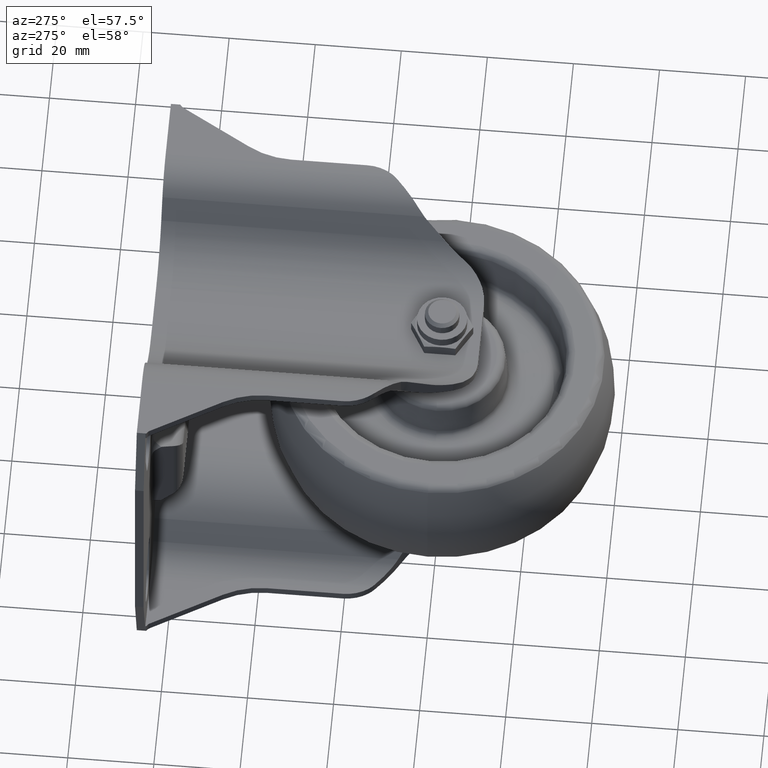
[diagram: clean part render]
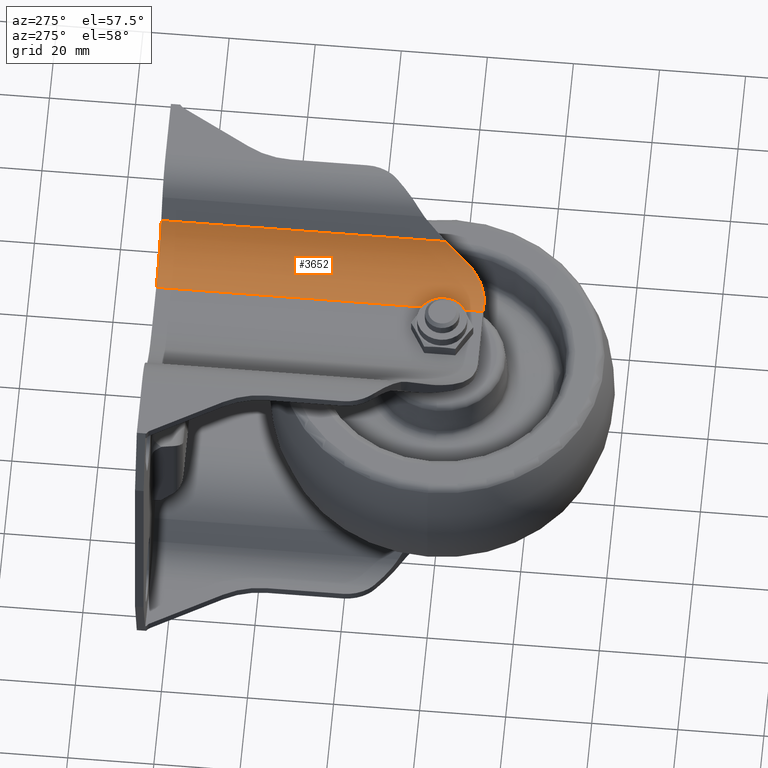
[diagram: same view with one face highlighted and labeled with its STEP entity id]
A machine part, auxiliary view. The second image highlights one B-rep face of the part: STEP entity #3652.
In plain terms, the highlighted cylindrical surface (partial cylindrical patch) has radius 15.5 mm, axis along (0, 1, 0).
Its self-contained STEP definition (entity closure, byte-faithful):
#52=ELLIPSE('',#4044,31.,15.5);
#89=B_SPLINE_CURVE_WITH_KNOTS('',3,(#6049,#6050,#6051,#6052,#6053,#6054,
#6055,#6056),.UNSPECIFIED.,.F.,.F.,(4,2,2,4),(-4.77685521076749,-4.36810699295151,
-3.95935877513553,-3.68877552892377),.UNSPECIFIED.);
#299=LINE('',#6036,#559);
#301=LINE('',#6045,#561);
#559=VECTOR('',#4647,1000.);
#561=VECTOR('',#4655,1000.);
#790=CYLINDRICAL_SURFACE('',#4043,15.5);
#914=FACE_OUTER_BOUND('',#1142,.T.);
#1142=EDGE_LOOP('',(#2720,#2721,#2722,#2723,#2724,#2725));
#1365=CIRCLE('',#4045,15.5);
#1366=CIRCLE('',#4046,15.5);
#1654=VERTEX_POINT('',#6033);
#1655=VERTEX_POINT('',#6035);
#1657=VERTEX_POINT('',#6041);
#1658=VERTEX_POINT('',#6042);
#1659=VERTEX_POINT('',#6044);
#1660=VERTEX_POINT('',#6047);
#2053=EDGE_CURVE('',#1654,#1655,#299,.T.);
#2056=EDGE_CURVE('',#1657,#1658,#52,.F.);
#2057=EDGE_CURVE('',#1657,#1659,#301,.T.);
#2058=EDGE_CURVE('',#1659,#1655,#1365,.T.);
#2059=EDGE_CURVE('',#1660,#1654,#1366,.F.);
#2060=EDGE_CURVE('',#1660,#1658,#89,.T.);
#2720=ORIENTED_EDGE('',*,*,#2056,.F.);
#2721=ORIENTED_EDGE('',*,*,#2057,.T.);
#2722=ORIENTED_EDGE('',*,*,#2058,.T.);
#2723=ORIENTED_EDGE('',*,*,#2053,.F.);
#2724=ORIENTED_EDGE('',*,*,#2059,.F.);
#2725=ORIENTED_EDGE('',*,*,#2060,.T.);
#3652=ADVANCED_FACE('',(#914),#790,.F.);
#4043=AXIS2_PLACEMENT_3D('',#6040,#4651,#4652);
#4044=AXIS2_PLACEMENT_3D('',#6043,#4653,#4654);
#4045=AXIS2_PLACEMENT_3D('',#6046,#4656,#4657);
#4046=AXIS2_PLACEMENT_3D('',#6048,#4658,#4659);
#4647=DIRECTION('',(0.,1.,0.));
#4651=DIRECTION('center_axis',(0.,1.,0.));
#4652=DIRECTION('ref_axis',(0.,0.,1.));
#4653=DIRECTION('center_axis',(0.866025403784438,-0.5,0.));
#4654=DIRECTION('ref_axis',(0.5,0.866025403784438,0.));
#4655=DIRECTION('',(0.,1.,0.));
#4656=DIRECTION('center_axis',(0.,1.,0.));
#4657=DIRECTION('ref_axis',(1.,0.,0.));
#4658=DIRECTION('center_axis',(0.,-1.,0.));
#4659=DIRECTION('ref_axis',(0.,0.,-1.));
#6033=CARTESIAN_POINT('',(6.3010708275608,-9.00000000000001,24.5));
#6035=CARTESIAN_POINT('',(6.3010708275608,67.,24.5));
#6036=CARTESIAN_POINT('',(6.3010708275608,65.,24.5));
#6040=CARTESIAN_POINT('Origin',(6.3010708275608,65.,40.));
#6041=CARTESIAN_POINT('',(19.7244645862196,0.915063509461113,32.25));
#6042=CARTESIAN_POINT('',(16.8867513459481,-4.,28.677748988711));
#6043=CARTESIAN_POINT('Origin',(6.3010708275608,-22.3349364905389,40.));
#6044=CARTESIAN_POINT('',(19.7244645862196,67.,32.25));
#6045=CARTESIAN_POINT('',(19.7244645862196,65.,32.25));
#6046=CARTESIAN_POINT('Origin',(6.3010708275608,67.,40.));
#6047=CARTESIAN_POINT('',(8.22649730810373,-9.00000000000001,24.6200541981441));
#6048=CARTESIAN_POINT('Origin',(6.3010708275608,-9.00000000000001,40.));
#6049=CARTESIAN_POINT('Ctrl Pts',(8.22649730810374,-9.,24.6200541981441));
#6050=CARTESIAN_POINT('Ctrl Pts',(9.57843826221448,-9.00000000000001,24.7893046588877));
#6051=CARTESIAN_POINT('Ctrl Pts',(10.9642882247785,-8.71175711225504,25.1578153664701));
#6052=CARTESIAN_POINT('Ctrl Pts',(13.4359983416072,-7.64145924506606,26.175064501699));
#6053=CARTESIAN_POINT('Ctrl Pts',(14.5247143898839,-6.86204192288158,26.8196309002583));
#6054=CARTESIAN_POINT('Ctrl Pts',(15.93817420583,-5.41702964756545,27.8402930849769));
#6055=CARTESIAN_POINT('Ctrl Pts',(16.4568797363806,-4.74455946850228,28.2758427318837));
#6056=CARTESIAN_POINT('Ctrl Pts',(16.8867513459481,-4.00000000000001,28.677748988711));